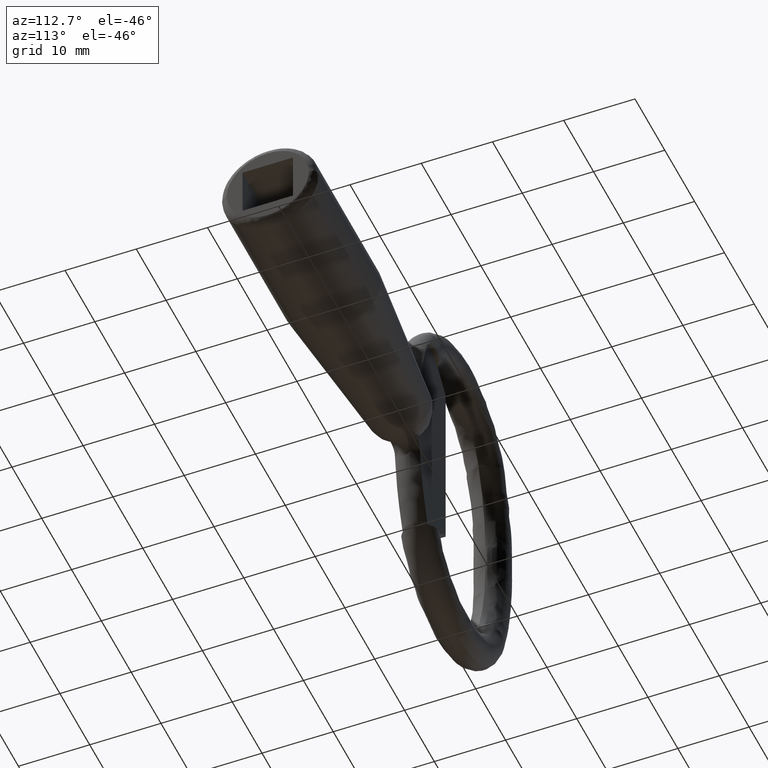
[diagram: clean part render]
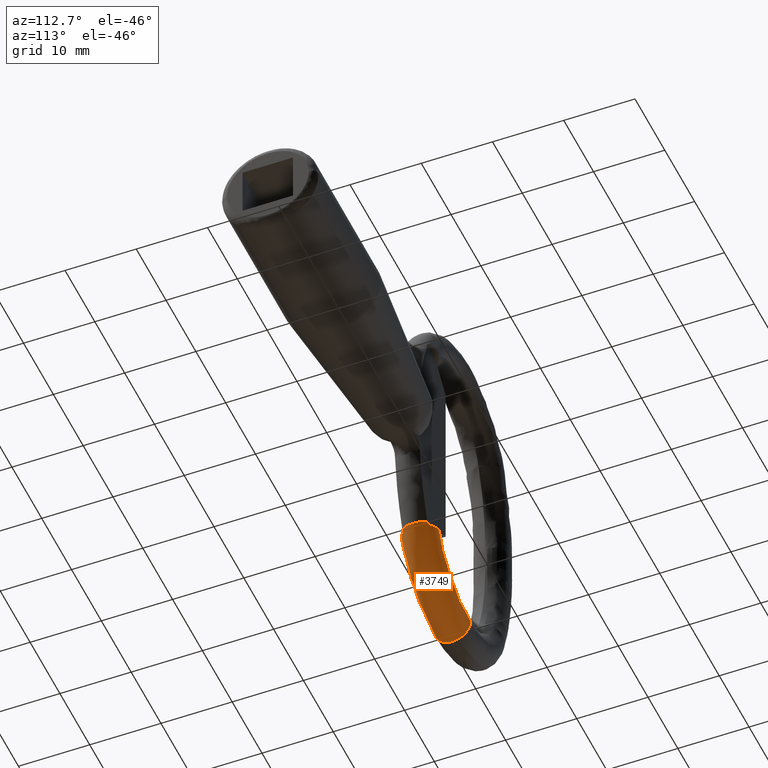
[diagram: same view with one face highlighted and labeled with its STEP entity id]
A machine part, auxiliary view. The second image highlights one B-rep face of the part: STEP entity #3749.
In plain terms, the highlighted face is a freeform B-spline surface patch.
Its self-contained STEP definition (entity closure, byte-faithful):
#1497=CARTESIAN_POINT('',(-62.221443634784507,0.000142196218092,-21.000079713873198));
#1498=VERTEX_POINT('',#1497);
#1518=CARTESIAN_POINT('',(-62.221443634784507,0.919495983686714,-25.822106288389168));
#1519=VERTEX_POINT('',#1518);
#1520=CARTESIAN_POINT('',(-62.221443634784507,0.919495983686714,-25.822106288389168));
#1521=CARTESIAN_POINT('',(-62.221443634784507,1.235811903918965,-25.696722721885170));
#1522=CARTESIAN_POINT('',(-62.221443634784507,1.527204242231194,-25.508359127479149));
#1523=CARTESIAN_POINT('',(-62.221443634784507,2.230638332380395,-24.804925037329951));
#1524=CARTESIAN_POINT('',(-62.221443634784507,2.500062482344925,-24.154477600454701));
#1525=CARTESIAN_POINT('',(-62.221443634784507,2.500062482344925,-22.845522399545349));
#1526=CARTESIAN_POINT('',(-62.221443634784507,2.230638332380395,-22.195074962670152));
#1527=CARTESIAN_POINT('',(-62.221443634784507,1.305067233547986,-21.269503863837748));
#1528=CARTESIAN_POINT('',(-62.221443634784507,0.654619796672772,-21.000079713873198));
#1529=CARTESIAN_POINT('',(-62.221443634784507,0.000142196218092,-21.000079713873198));
#1530=B_SPLINE_CURVE_WITH_KNOTS('',3,(#1520,#1521,#1522,#1523,#1524,#1525,#1526,#1527,#1528,#1529),.UNSPECIFIED.,.F.,.U.,(4,2,2,2,4),(0.559999985134429,0.625000000000000,0.750000000000000,0.875000000000000,1.0),.UNSPECIFIED.);
#1531=EDGE_CURVE('',#1519,#1498,#1530,.T.);
#1749=CARTESIAN_POINT('',(-62.221443634784507,0.000142196218093,-25.999920286126901));
#1750=VERTEX_POINT('',#1749);
#1751=CARTESIAN_POINT('',(-62.221443634784507,0.000142196218093,-25.999920286126901));
#1752=CARTESIAN_POINT('',(-62.221443634784507,0.314291366602873,-25.999920286126901));
#1753=CARTESIAN_POINT('',(-62.221443634784507,0.627511987759059,-25.937844992734568));
#1754=CARTESIAN_POINT('',(-62.221443634784507,0.919495983686714,-25.822106288389168));
#1755=B_SPLINE_CURVE_WITH_KNOTS('',3,(#1751,#1752,#1753,#1754),.UNSPECIFIED.,.F.,.U.,(4,4),(0.500000000000000,0.559999985134429),.UNSPECIFIED.);
#1756=EDGE_CURVE('',#1750,#1519,#1755,.T.);
#1758=CARTESIAN_POINT('',(-62.221443634784507,-2.188649087722205,-22.296493226061731));
#1759=VERTEX_POINT('',#1758);
#1760=CARTESIAN_POINT('',(-62.221443634784507,-2.188649087722205,-22.296493226061731));
#1761=CARTESIAN_POINT('',(-62.221443634784507,-2.389421957804363,-22.663919425365759));
#1762=CARTESIAN_POINT('',(-62.221443634784507,-2.499778089908740,-23.081134335179730));
#1763=CARTESIAN_POINT('',(-62.221443634784507,-2.499778089908740,-24.154477600454701));
#1764=CARTESIAN_POINT('',(-62.221443634784507,-2.230353939944210,-24.804925037329951));
#1765=CARTESIAN_POINT('',(-62.221443634784507,-1.304782841111800,-25.730496136162351));
#1766=CARTESIAN_POINT('',(-62.221443634784507,-0.654335404236586,-25.999920286126901));
#1767=CARTESIAN_POINT('',(-62.221443634784507,0.000142196218093,-25.999920286126901));
#1768=B_SPLINE_CURVE_WITH_KNOTS('',3,(#1760,#1761,#1762,#1763,#1764,#1765,#1766,#1767),.UNSPECIFIED.,.F.,.U.,(4,2,2,4),(0.169999999898907,0.250000000000000,0.375000000000000,0.500000000000000),.UNSPECIFIED.);
#1769=EDGE_CURVE('',#1759,#1750,#1768,.T.);
#3296=CARTESIAN_POINT('',(-62.221443634784507,-2.188649088102768,-22.296493226758180));
#3297=CARTESIAN_POINT('',(-62.221443634784507,-2.389421958083269,-22.663919426420190));
#3298=CARTESIAN_POINT('',(-62.221443634784507,-2.499778089908740,-23.081134335709031));
#3299=CARTESIAN_POINT('',(-62.221443634784507,-2.499778089908740,-24.154477600454701));
#3300=CARTESIAN_POINT('',(-62.221443634784507,-2.230353939944210,-24.804925037329951));
#3301=CARTESIAN_POINT('',(-62.221443634784507,-1.304782841111800,-25.730496136162351));
#3302=CARTESIAN_POINT('',(-62.221443634784507,-0.654335404236586,-25.999920286126901));
#3303=CARTESIAN_POINT('',(-62.221443634784507,0.654619796672772,-25.999920286126901));
#3304=CARTESIAN_POINT('',(-62.221443634784507,1.305067233547988,-25.730496136162351));
#3305=CARTESIAN_POINT('',(-62.221443634784507,2.230638332380395,-24.804925037329951));
#3306=CARTESIAN_POINT('',(-62.221443634784507,2.500062482344925,-24.154477600454701));
#3307=CARTESIAN_POINT('',(-62.221443634784507,2.500062482344925,-22.845522399545349));
#3308=CARTESIAN_POINT('',(-62.221443634784507,2.230638332380395,-22.195074962670152));
#3309=CARTESIAN_POINT('',(-62.221443634784507,1.305067233547986,-21.269503863837748));
#3310=CARTESIAN_POINT('',(-62.221443634784507,0.654619796672772,-21.000079713873198));
#3311=CARTESIAN_POINT('',(-62.221443634784507,0.000142196218092,-21.000079713873198));
#3312=CARTESIAN_POINT('',(-60.090089663664628,-2.188649088102768,-22.296493226758180));
#3313=CARTESIAN_POINT('',(-60.015940314271937,-2.389421958083269,-22.663919426420190));
#3314=CARTESIAN_POINT('',(-59.931743231675682,-2.499778089908740,-23.081134335709031));
#3315=CARTESIAN_POINT('',(-59.715134549901897,-2.499778089908740,-24.154477600454701));
#3316=CARTESIAN_POINT('',(-59.583869402498600,-2.230353939944210,-24.804925037329951));
#3317=CARTESIAN_POINT('',(-59.397082246711399,-1.304782841111800,-25.730496136162351));
#3318=CARTESIAN_POINT('',(-59.342710442391287,-0.654335404236586,-25.999920286126901));
#3319=CARTESIAN_POINT('',(-59.342710442391287,0.654619796672772,-25.999920286126901));
#3320=CARTESIAN_POINT('',(-59.397082246711399,1.305067233547988,-25.730496136162351));
#3321=CARTESIAN_POINT('',(-59.583869402498600,2.230638332380395,-24.804925037329951));
#3322=CARTESIAN_POINT('',(-59.715134549901897,2.500062482344925,-24.154477600454701));
#3323=CARTESIAN_POINT('',(-59.979291478894297,2.500062482344925,-22.845522399545349));
#3324=CARTESIAN_POINT('',(-60.110556626297502,2.230638332380395,-22.195074962670152));
#3325=CARTESIAN_POINT('',(-60.297343782078599,1.305067233547986,-21.269503863837748));
#3326=CARTESIAN_POINT('',(-60.351715586404801,0.654619796672772,-21.000079713873198));
#3327=CARTESIAN_POINT('',(-60.351715586404801,0.000142196218092,-21.000079713873198));
#3328=CARTESIAN_POINT('',(-57.967265482017311,-2.188649088102768,-21.633551521451409));
#3329=CARTESIAN_POINT('',(-57.819263532783950,-2.389421958083269,-21.977914120792729));
#3330=CARTESIAN_POINT('',(-57.651206328696730,-2.499778089908740,-22.368940157528151));
#3331=CARTESIAN_POINT('',(-57.218855844375597,-2.499778089908740,-23.374908912535201));
#3332=CARTESIAN_POINT('',(-56.956850879514803,-2.230353939944210,-23.984527307494499));
#3333=CARTESIAN_POINT('',(-56.584024099864202,-1.304782841111800,-24.851999659117102));
#3334=CARTESIAN_POINT('',(-56.475498090008202,-0.654335404236586,-25.104511866157701));
#3335=CARTESIAN_POINT('',(-56.475498090008202,0.654619796672772,-25.104511866157701));
#3336=CARTESIAN_POINT('',(-56.584024099864202,1.305067233547988,-24.851999659117102));
#3337=CARTESIAN_POINT('',(-56.956850879514803,2.230638332380395,-23.984527307494499));
#3338=CARTESIAN_POINT('',(-57.218855844375597,2.500062482344925,-23.374908912535201));
#3339=CARTESIAN_POINT('',(-57.746112532572099,2.500062482344925,-22.148117747892449));
#3340=CARTESIAN_POINT('',(-58.008117497432913,2.230638332380395,-21.538499352949650));
#3341=CARTESIAN_POINT('',(-58.380944277091700,1.305067233547986,-20.671027001327001));
#3342=CARTESIAN_POINT('',(-58.489470286939600,0.654619796672772,-20.418514794278199));
#3343=CARTESIAN_POINT('',(-58.489470286939600,0.000142196218092,-20.418514794278199));
#3344=CARTESIAN_POINT('',(-55.339854959998682,-2.188649088102768,-19.817180788853481));
#3345=CARTESIAN_POINT('',(-55.100445959926191,-2.389421958083269,-20.098352238387040));
#3346=CARTESIAN_POINT('',(-54.828595437725419,-2.499778089908740,-20.417624301510720));
#3347=CARTESIAN_POINT('',(-54.129222235746397,-2.499778089908740,-21.238995999757599));
#3348=CARTESIAN_POINT('',(-53.705401151117002,-2.230353939944210,-21.736748334339250));
#3349=CARTESIAN_POINT('',(-53.102313914898502,-1.304782841111800,-22.445037965684900));
#3350=CARTESIAN_POINT('',(-52.926761473626200,-0.654335404236586,-22.651213733383351));
#3351=CARTESIAN_POINT('',(-52.926761473626200,0.654619796672772,-22.651213733383351));
#3352=CARTESIAN_POINT('',(-53.102313914898502,1.305067233547988,-22.445037965684900));
#3353=CARTESIAN_POINT('',(-53.705401151117002,2.230638332380395,-21.736748334339250));
#3354=CARTESIAN_POINT('',(-54.129222235746397,2.500062482344925,-21.238995999757599));
#3355=CARTESIAN_POINT('',(-54.982116384501303,2.500062482344925,-20.237323197017499));
#3356=CARTESIAN_POINT('',(-55.405937469130699,2.230638332380395,-19.739570862427598));
#3357=CARTESIAN_POINT('',(-56.009024705345098,1.305067233547986,-19.031281231081952));
#3358=CARTESIAN_POINT('',(-56.184577146621500,0.654619796672772,-18.825105463387651));
#3359=CARTESIAN_POINT('',(-56.184577146621500,0.000142196218092,-18.825105463387651));
#3360=CARTESIAN_POINT('',(-54.556961764197297,-2.188649088102768,-19.078937082112070));
#3361=CARTESIAN_POINT('',(-54.290316077070159,-2.389421958083269,-19.334425190779299));
#3362=CARTESIAN_POINT('',(-53.987538114394802,-2.499778089908740,-19.624533648423188));
#3363=CARTESIAN_POINT('',(-53.208599778978801,-2.499778089908740,-20.370877923580750));
#3364=CARTESIAN_POINT('',(-52.736562118340601,-2.230353939944210,-20.823163540630748));
#3365=CARTESIAN_POINT('',(-52.064863851151912,-1.304782841111800,-21.466755123632250));
#3366=CARTESIAN_POINT('',(-51.869339450162798,-0.654335404236586,-21.654097960282250));
#3367=CARTESIAN_POINT('',(-51.869339450162798,0.654619796672772,-21.654097960282250));
#3368=CARTESIAN_POINT('',(-52.064863851151912,1.305067233547988,-21.466755123632250));
#3369=CARTESIAN_POINT('',(-52.736562118340601,2.230638332380395,-20.823163540630748));
#3370=CARTESIAN_POINT('',(-53.208599778978801,2.500062482344925,-20.370877923580750));
#3371=CARTESIAN_POINT('',(-54.158524578266601,2.500062482344925,-19.460701978266648));
#3372=CARTESIAN_POINT('',(-54.630562238904808,2.230638332380395,-19.008416361216600));
#3373=CARTESIAN_POINT('',(-55.302260506093397,1.305067233547986,-18.364824778211052));
#3374=CARTESIAN_POINT('',(-55.497784907082597,0.654619796672772,-18.177481941560998));
#3375=CARTESIAN_POINT('',(-55.497784907082597,0.000142196218092,-18.177481941560998));
#3376=CARTESIAN_POINT('',(-53.573275284265499,-2.188649088102768,-17.820738918640799));
#3377=CARTESIAN_POINT('',(-53.272407354619439,-2.389421958083269,-18.032454581954632));
#3378=CARTESIAN_POINT('',(-52.930769806478970,-2.499778089908740,-18.272859134884719));
#3379=CARTESIAN_POINT('',(-52.051859793638712,-2.499778089908740,-18.891333216123549));
#3380=CARTESIAN_POINT('',(-51.519239164363299,-2.230353939944210,-19.266129326677451));
#3381=CARTESIAN_POINT('',(-50.761332786150902,-1.304782841111800,-19.799455200864401));
#3382=CARTESIAN_POINT('',(-50.540714097906303,-0.654335404236586,-19.954700832979700));
#3383=CARTESIAN_POINT('',(-50.540714097906303,0.654619796672772,-19.954700832979700));
#3384=CARTESIAN_POINT('',(-50.761332786150902,1.305067233547988,-19.799455200864401));
#3385=CARTESIAN_POINT('',(-51.519239164363299,2.230638332380395,-19.266129326677451));
#3386=CARTESIAN_POINT('',(-52.051859793638712,2.500062482344925,-18.891333216123549));
#3387=CARTESIAN_POINT('',(-53.123701272712204,2.500062482344925,-18.137096531685948));
#3388=CARTESIAN_POINT('',(-53.656321901987603,2.230638332380395,-17.762300421132050));
#3389=CARTESIAN_POINT('',(-54.414228280200000,1.305067233547986,-17.228974546947150));
#3390=CARTESIAN_POINT('',(-54.634846968444599,0.654619796672772,-17.073728914831850));
#3391=CARTESIAN_POINT('',(-54.634846968444599,0.000142196218092,-17.073728914831850));
#3392=CARTESIAN_POINT('',(-53.277129051268261,-2.188649088102768,-17.376469645097540));
#3393=CARTESIAN_POINT('',(-52.965958257434423,-2.389421958083269,-17.572729275281350));
#3394=CARTESIAN_POINT('',(-52.612621738040701,-2.499778089908740,-17.795583399128240));
#3395=CARTESIAN_POINT('',(-51.703614497794000,-2.499778089908740,-18.368906565504350));
#3396=CARTESIAN_POINT('',(-51.152754908943400,-2.230353939944210,-18.716341161985451));
#3397=CARTESIAN_POINT('',(-50.368894928794901,-1.304782841111800,-19.210732258028500));
#3398=CARTESIAN_POINT('',(-50.140721416125693,-0.654335404236586,-19.354644379926398));
#3399=CARTESIAN_POINT('',(-50.140721416125693,0.654619796672772,-19.354644379926398));
#3400=CARTESIAN_POINT('',(-50.368894928794901,1.305067233547988,-19.210732258028500));
#3401=CARTESIAN_POINT('',(-51.152754908943400,2.230638332380395,-18.716341161985451));
#3402=CARTESIAN_POINT('',(-51.703614497794000,2.500062482344925,-18.368906565504350));
#3403=CARTESIAN_POINT('',(-52.812159912729001,2.500062482344925,-17.669731972362751));
#3404=CARTESIAN_POINT('',(-53.363019501579593,2.230638332380395,-17.322297375885750));
#3405=CARTESIAN_POINT('',(-54.146879481732199,1.305067233547986,-16.827906279840700));
#3406=CARTESIAN_POINT('',(-54.375052994401500,0.654619796672772,-16.683994157940699));
#3407=CARTESIAN_POINT('',(-54.375052994401500,0.000142196218092,-16.683994157940699));
#3408=CARTESIAN_POINT('',(-52.885634722396347,-2.188649088102768,-16.680379259025919));
#3409=CARTESIAN_POINT('',(-52.560843924483990,-2.389421958083269,-16.852422053365459));
#3410=CARTESIAN_POINT('',(-52.192041799285647,-2.499778089908740,-17.047777798002780));
#3411=CARTESIAN_POINT('',(-51.243247141446098,-2.499778089908740,-17.550357567006699));
#3412=CARTESIAN_POINT('',(-50.668276324946000,-2.230353939944210,-17.854921571188900));
#3413=CARTESIAN_POINT('',(-49.850106646270213,-1.304782841111800,-18.288308842835399));
#3414=CARTESIAN_POINT('',(-49.611945936109201,-0.654335404236586,-18.414463383979399));
#3415=CARTESIAN_POINT('',(-49.611945936109201,0.654619796672772,-18.414463383979399));
#3416=CARTESIAN_POINT('',(-49.850106646270213,1.305067233547988,-18.288308842835399));
#3417=CARTESIAN_POINT('',(-50.668276324946000,2.230638332380395,-17.854921571188900));
#3418=CARTESIAN_POINT('',(-51.243247141446098,2.500062482344925,-17.550357567006699));
#3419=CARTESIAN_POINT('',(-52.400313797347998,2.500062482344925,-16.937455409684851));
#3420=CARTESIAN_POINT('',(-52.975284613848103,2.230638332380395,-16.632891405500651));
#3421=CARTESIAN_POINT('',(-53.793454292521801,1.305067233547986,-16.199504133855150));
#3422=CARTESIAN_POINT('',(-54.031615002682798,0.654619796672772,-16.073349592712201));
#3423=CARTESIAN_POINT('',(-54.031615002682798,0.000142196218092,-16.073349592712201));
#3424=CARTESIAN_POINT('',(-52.763909327705072,-2.188649088102768,-16.443407094588359));
#3425=CARTESIAN_POINT('',(-52.434883729312901,-2.389421958083269,-16.607205677944830));
#3426=CARTESIAN_POINT('',(-52.061272959821807,-2.499778089908740,-16.793200065823541));
#3427=CARTESIAN_POINT('',(-51.100107397081807,-2.499778089908740,-17.271696445183149));
#3428=CARTESIAN_POINT('',(-50.517639795867403,-2.230353939944210,-17.561665883416548));
#3429=CARTESIAN_POINT('',(-49.688802372382803,-1.304782841111800,-17.974285437828900));
#3430=CARTESIAN_POINT('',(-49.447536392318803,-0.654335404236586,-18.094394711817849));
#3431=CARTESIAN_POINT('',(-49.447536392318803,0.654619796672772,-18.094394711817849));
#3432=CARTESIAN_POINT('',(-49.688802372382803,1.305067233547988,-17.974285437828900));
#3433=CARTESIAN_POINT('',(-50.517639795867403,2.230638332380395,-17.561665883416548));
#3434=CARTESIAN_POINT('',(-51.100107397081807,2.500062482344925,-17.271696445183149));
#3435=CARTESIAN_POINT('',(-52.272260522374502,2.500062482344925,-16.688164275232399));
#3436=CARTESIAN_POINT('',(-52.854728123588792,2.230638332380395,-16.398194836999050));
#3437=CARTESIAN_POINT('',(-53.683565547071403,1.305067233547986,-15.985575282586201));
#3438=CARTESIAN_POINT('',(-53.924831527139503,0.654619796672772,-15.865466008596149));
#3439=CARTESIAN_POINT('',(-53.924831527139503,0.000142196218092,-15.865466008596149));
#3440=CARTESIAN_POINT('',(-52.594982899972777,-2.188649088102768,-16.081494134274308));
#3441=CARTESIAN_POINT('',(-52.260080387242411,-2.389421958083269,-16.232701843046659));
#3442=CARTESIAN_POINT('',(-51.879796342179951,-2.499778089908740,-16.404399208550931));
#3443=CARTESIAN_POINT('',(-50.901462851764798,-2.499778089908740,-16.846114513387501));
#3444=CARTESIAN_POINT('',(-50.308591463690199,-2.230353939944210,-17.113794571851251));
#3445=CARTESIAN_POINT('',(-49.464949701087797,-1.304782841111800,-17.494696873563399));
#3446=CARTESIAN_POINT('',(-49.219374331403401,-0.654335404236586,-17.605573584156399));
#3447=CARTESIAN_POINT('',(-49.219374331403401,0.654619796672772,-17.605573584156399));
#3448=CARTESIAN_POINT('',(-49.464949701087797,1.305067233547988,-17.494696873563399));
#3449=CARTESIAN_POINT('',(-50.308591463690199,2.230638332380395,-17.113794571851251));
#3450=CARTESIAN_POINT('',(-50.901462851764798,2.500062482344925,-16.846114513387501));
#3451=CARTESIAN_POINT('',(-52.094552474222297,2.500062482344925,-16.307437312367298));
#3452=CARTESIAN_POINT('',(-52.687423862296903,2.230638332380395,-16.039757253903549));
#3453=CARTESIAN_POINT('',(-53.531065624900293,1.305067233547986,-15.658854952191650));
#3454=CARTESIAN_POINT('',(-53.776640994582699,0.654619796672772,-15.547978241599150));
#3455=CARTESIAN_POINT('',(-53.776640994582699,0.000142196218092,-15.547978241599150));
#3456=CARTESIAN_POINT('',(-52.540950093329940,-2.188649088102768,-15.959780487845951));
#3457=CARTESIAN_POINT('',(-52.204167790798337,-2.389421958083269,-16.106753804857519));
#3458=CARTESIAN_POINT('',(-51.821749231833287,-2.499778089908740,-16.273642990172220));
#3459=CARTESIAN_POINT('',(-50.837924408124799,-2.499778089908740,-16.702988584081051));
#3460=CARTESIAN_POINT('',(-50.241725264818697,-2.230353939944210,-16.963172581376650));
#3461=CARTESIAN_POINT('',(-49.393348186351602,-1.304782841111800,-17.333408167871301));
#3462=CARTESIAN_POINT('',(-49.146394415319101,-0.654335404236586,-17.441179908263901));
#3463=CARTESIAN_POINT('',(-49.146394415319101,0.654619796672772,-17.441179908263901));
#3464=CARTESIAN_POINT('',(-49.393348186351602,1.305067233547988,-17.333408167871301));
#3465=CARTESIAN_POINT('',(-50.241725264818697,2.230638332380395,-16.963172581376650));
#3466=CARTESIAN_POINT('',(-50.837924408124799,2.500062482344925,-16.702988584081051));
#3467=CARTESIAN_POINT('',(-52.037710778501001,2.500062482344925,-16.179396396387350));
#3468=CARTESIAN_POINT('',(-52.633909921806001,2.230638332380395,-15.919212399091499));
#3469=CARTESIAN_POINT('',(-53.482287000274198,1.305067233547986,-15.548976812596850));
#3470=CARTESIAN_POINT('',(-53.729240771306600,0.654619796672772,-15.441205072204751));
#3471=CARTESIAN_POINT('',(-53.729240771306600,0.000142196218092,-15.441205072204751));
#3472=CARTESIAN_POINT('',(-52.437509690555189,-2.188649088102768,-15.714356580764751));
#3473=CARTESIAN_POINT('',(-52.097128718505793,-2.389421958083269,-15.852791652471939));
#3474=CARTESIAN_POINT('',(-51.710623846213302,-2.499778089908740,-16.009985603087959));
#3475=CARTESIAN_POINT('',(-50.716286414281797,-2.499778089908740,-16.414388860009499));
#3476=CARTESIAN_POINT('',(-50.113716616498799,-2.230353939944210,-16.659457768128899));
#3477=CARTESIAN_POINT('',(-49.256274249538698,-1.304782841111800,-17.008184945327748));
#3478=CARTESIAN_POINT('',(-49.006681667020402,-0.654335404236586,-17.109695810786398));
#3479=CARTESIAN_POINT('',(-49.006681667020402,0.654619796672772,-17.109695810786398));
#3480=CARTESIAN_POINT('',(-49.256274249538698,1.305067233547988,-17.008184945327748));
#3481=CARTESIAN_POINT('',(-50.113716616498799,2.230638332380395,-16.659457768128899));
#3482=CARTESIAN_POINT('',(-50.716286414281797,2.500062482344925,-16.414388860009499));
#3483=CARTESIAN_POINT('',(-51.928893038588498,2.500062482344925,-15.921214156446650));
#3484=CARTESIAN_POINT('',(-52.531462836372597,2.230638332380395,-15.676145248327551));
#3485=CARTESIAN_POINT('',(-53.388905203331603,1.305067233547986,-15.327418071128699));
#3486=CARTESIAN_POINT('',(-53.638497785849900,0.654619796672772,-15.225907205669500));
#3487=CARTESIAN_POINT('',(-53.638497785849900,0.000142196218092,-15.225907205669500));
#3488=CARTESIAN_POINT('',(-52.390786126743812,-2.188649088102768,-15.597746556623070));
#3489=CARTESIAN_POINT('',(-52.047867735617487,-2.389421958083269,-15.729709760345710));
#3490=CARTESIAN_POINT('',(-51.658481606977659,-2.499778089908740,-15.879554861542291));
#3491=CARTESIAN_POINT('',(-50.656731743164897,-2.499778089908740,-16.265052183291001));
#3492=CARTESIAN_POINT('',(-50.049670001867298,-2.230353939944210,-16.498664069711001));
#3493=CARTESIAN_POINT('',(-49.185835707044198,-1.304782841111800,-16.831088179878900));
#3494=CARTESIAN_POINT('',(-48.934382500600798,-0.654335404236586,-16.927853391565499));
#3495=CARTESIAN_POINT('',(-48.934382500600798,0.654619796672772,-16.927853391565499));
#3496=CARTESIAN_POINT('',(-49.185835707044198,1.305067233547988,-16.831088179878900));
#3497=CARTESIAN_POINT('',(-50.049670001867298,2.230638332380395,-16.498664069711001));
#3498=CARTESIAN_POINT('',(-50.656731743164897,2.500062482344925,-16.265052183291001));
#3499=CARTESIAN_POINT('',(-51.878377918546313,2.500062482344925,-15.794933498231600));
#3500=CARTESIAN_POINT('',(-52.485439659844900,2.230638332380395,-15.561321611811350));
#3501=CARTESIAN_POINT('',(-53.349273954668000,1.305067233547986,-15.228897501643750));
#3502=CARTESIAN_POINT('',(-53.600727161111401,0.654619796672772,-15.132132289956850));
#3503=CARTESIAN_POINT('',(-53.600727161111401,0.000142196218092,-15.132132289956850));
#3504=CARTESIAN_POINT('',(-52.330411387673408,-2.188649088102768,-15.437865709785020));
#3505=CARTESIAN_POINT('',(-51.986499338201952,-2.389421958083269,-15.567197743989849));
#3506=CARTESIAN_POINT('',(-51.595984903859602,-2.499778089908740,-15.714055134585680));
#3507=CARTESIAN_POINT('',(-50.591332317014597,-2.499778089908740,-16.091866156111340));
#3508=CARTESIAN_POINT('',(-49.982511521722813,-2.230353939944210,-16.320820134438950));
#3509=CARTESIAN_POINT('',(-49.116174135265808,-1.304782841111800,-16.646616153131401));
#3510=CARTESIAN_POINT('',(-48.863992304801222,-0.654335404236586,-16.741451996113991));
#3511=CARTESIAN_POINT('',(-48.863992304801222,0.654619796672772,-16.741451996113991));
#3512=CARTESIAN_POINT('',(-49.116174135265808,1.305067233547988,-16.646616153131401));
#3513=CARTESIAN_POINT('',(-49.982511521722813,2.230638332380395,-16.320820134438950));
#3514=CARTESIAN_POINT('',(-50.591332317014597,2.500062482344925,-16.091866156111340));
#3515=CARTESIAN_POINT('',(-51.816518398532892,2.500062482344925,-15.631121007909311));
#3516=CARTESIAN_POINT('',(-52.425339193824520,2.230638332380395,-15.402167029581790));
#3517=CARTESIAN_POINT('',(-53.291676580281433,1.305067233547986,-15.076371010889259));
#3518=CARTESIAN_POINT('',(-53.543858410746033,0.654619796672772,-14.981535167906721));
#3519=CARTESIAN_POINT('',(-53.543858410746033,0.000142196218092,-14.981535167906721));
#3520=CARTESIAN_POINT('',(-52.319033053135563,-2.188649088102768,-15.407732521282901));
#3521=CARTESIAN_POINT('',(-51.975174967532197,-2.389421958083268,-15.537207471037091));
#3522=CARTESIAN_POINT('',(-51.584721809523302,-2.499778089908740,-15.684227143195910));
#3523=CARTESIAN_POINT('',(-50.580226864551413,-2.499778089908740,-16.062455656567519));
#3524=CARTESIAN_POINT('',(-49.971501600443048,-2.230353939944210,-16.291662635505489));
#3525=CARTESIAN_POINT('',(-49.105300152568383,-1.304782841111800,-16.617818667997138));
#3526=CARTESIAN_POINT('',(-48.853157892415567,-0.654335404236586,-16.712759307263820));
#3527=CARTESIAN_POINT('',(-48.853157892415567,0.654619796672772,-16.712759307263820));
#3528=CARTESIAN_POINT('',(-49.105300152568383,1.305067233547988,-16.617818667997138));
#3529=CARTESIAN_POINT('',(-49.971501600443048,2.230638332380395,-16.291662635505489));
#3530=CARTESIAN_POINT('',(-50.580226864551413,2.500062482344925,-16.062455656567519));
#3531=CARTESIAN_POINT('',(-51.805220699882973,2.500062482344925,-15.601201371967990));
#3532=CARTESIAN_POINT('',(-52.413945963991146,2.230638332380395,-15.371994393030130));
#3533=CARTESIAN_POINT('',(-53.280147411865762,1.305067233547986,-15.045838360538401));
#3534=CARTESIAN_POINT('',(-53.532289672018557,0.654619796672772,-14.950897721271771));
#3535=CARTESIAN_POINT('',(-53.532289672018557,0.000142196218092,-14.950897721271771));
#3536=CARTESIAN_POINT('',(-52.307586081708450,-2.188649088102768,-15.377417094792190));
#3537=CARTESIAN_POINT('',(-51.963802966900367,-2.389421958083268,-15.507090576555891));
#3538=CARTESIAN_POINT('',(-51.573434938731353,-2.499778089908740,-15.654335683140500));
#3539=CARTESIAN_POINT('',(-50.569159002088902,-2.499778089908740,-16.033144157863390));
#3540=CARTESIAN_POINT('',(-49.960566457317597,-2.230353939944210,-16.262702594146649));
#3541=CARTESIAN_POINT('',(-49.094553865875682,-1.304782841111800,-16.589358742009420));
#3542=CARTESIAN_POINT('',(-48.842466579872273,-0.654335404236586,-16.684444959675101));
#3543=CARTESIAN_POINT('',(-48.842466579872273,0.654619796672772,-16.684444959675101));
#3544=CARTESIAN_POINT('',(-49.094553865875682,1.305067233547988,-16.589358742009420));
#3545=CARTESIAN_POINT('',(-49.960566457317597,2.230638332380395,-16.262702594146649));
#3546=CARTESIAN_POINT('',(-50.569159002088902,2.500062482344925,-16.033144157863390));
#3547=CARTESIAN_POINT('',(-51.793885754091903,2.500062482344925,-15.571182603323271));
#3548=CARTESIAN_POINT('',(-52.402478298863052,2.230638332380395,-15.341624167040109));
#3549=CARTESIAN_POINT('',(-53.268490890304918,1.305067233547986,-15.014968019177291));
#3550=CARTESIAN_POINT('',(-53.520578176308327,0.654619796672772,-14.919881801511639));
#3551=CARTESIAN_POINT('',(-53.520578176308327,0.000142196218092,-14.919881801511639));
#3552=B_SPLINE_SURFACE_WITH_KNOTS('',3,3,((#3296,#3312,#3328,#3344,#3360,#3376,#3392,#3408,#3424,#3440,#3456,#3472,#3488,#3504,#3520,#3536),(#3297,#3313,#3329,#3345,#3361,#3377,#3393,#3409,#3425,#3441,#3457,#3473,#3489,#3505,#3521,#3537),(#3298,#3314,#3330,#3346,#3362,#3378,#3394,#3410,#3426,#3442,#3458,#3474,#3490,#3506,#3522,#3538),(#3299,#3315,#3331,#3347,#3363,#3379,#3395,#3411,#3427,#3443,#3459,#3475,#3491,#3507,#3523,#3539),(#3300,#3316,#3332,#3348,#3364,#3380,#3396,#3412,#3428,#3444,#3460,#3476,#3492,#3508,#3524,#3540),(#3301,#3317,#3333,#3349,#3365,#3381,#3397,#3413,#3429,#3445,#3461,#3477,#3493,#3509,#3525,#3541),(#3302,#3318,#3334,#3350,#3366,#3382,#3398,#3414,#3430,#3446,#3462,#3478,#3494,#3510,#3526,#3542),(#3303,#3319,#3335,#3351,#3367,#3383,#3399,#3415,#3431,#3447,#3463,#3479,#3495,#3511,#3527,#3543),(#3304,#3320,#3336,#3352,#3368,#3384,#3400,#3416,#3432,#3448,#3464,#3480,#3496,#3512,#3528,#3544),(#3305,#3321,#3337,#3353,#3369,#3385,#3401,#3417,#3433,#3449,#3465,#3481,#3497,#3513,#3529,#3545),(#3306,#3322,#3338,#3354,#3370,#3386,#3402,#3418,#3434,#3450,#3466,#3482,#3498,#3514,#3530,#3546),(#3307,#3323,#3339,#3355,#3371,#3387,#3403,#3419,#3435,#3451,#3467,#3483,#3499,#3515,#3531,#3547),(#3308,#3324,#3340,#3356,#3372,#3388,#3404,#3420,#3436,#3452,#3468,#3484,#3500,#3516,#3532,#3548),(#3309,#3325,#3341,#3357,#3373,#3389,#3405,#3421,#3437,#3453,#3469,#3485,#3501,#3517,#3533,#3549),(#3310,#3326,#3342,#3358,#3374,#3390,#3406,#3422,#3438,#3454,#3470,#3486,#3502,#3518,#3534,#3550),(#3311,#3327,#3343,#3359,#3375,#3391,#3407,#3423,#3439,#3455,#3471,#3487,#3503,#3519,#3535,#3551)),.UNSPECIFIED.,.F.,.F.,.U.,(4,2,2,2,2,2,2,4),(4,2,2,2,2,2,2,4),(0.0,1.256596992872985,3.220029794237024,5.183462595601061,7.146895396965101,9.110328198329139,11.073760999693180,13.037193801057221),(0.0,8.825172754457885,13.237759131686810,15.444052320301269,16.547198914608479,17.098772211762100,17.650345508915731,17.768200482989311),.UNSPECIFIED.);
#3553=CARTESIAN_POINT('',(-49.695713847774400,-1.750000083120950,-16.902932109831902));
#3554=VERTEX_POINT('',#3553);
#3555=CARTESIAN_POINT('',(-52.491233573947270,-2.188649039020642,-15.841819321912689));
#3556=VERTEX_POINT('',#3555);
#3557=CARTESIAN_POINT('',(-49.695713847774400,-1.750000083120950,-16.902932109831902));
#3558=CARTESIAN_POINT('',(-49.814100384642089,-1.868594019894284,-16.885337787491359));
#3559=CARTESIAN_POINT('',(-49.941757022802797,-1.973089579873410,-16.863265477695279));
#3560=CARTESIAN_POINT('',(-50.145223011970899,-2.110790626353637,-16.821402090175539));
#3561=CARTESIAN_POINT('',(-50.215066036262201,-2.153482608454127,-16.805984512586459));
#3562=CARTESIAN_POINT('',(-50.358746976349892,-2.232398183022572,-16.771799955965811));
#3563=CARTESIAN_POINT('',(-50.432745983352092,-2.268640177259603,-16.752973569099190));
#3564=CARTESIAN_POINT('',(-50.655743931685002,-2.365214186308719,-16.692206885036690));
#3565=CARTESIAN_POINT('',(-50.807258551922097,-2.414491310379274,-16.645659700992450));
#3566=CARTESIAN_POINT('',(-51.000016466095090,-2.456675905462162,-16.578772645612361));
#3567=CARTESIAN_POINT('',(-51.038739528203358,-2.464129964479034,-16.564958150855770));
#3568=CARTESIAN_POINT('',(-51.116537009716758,-2.477007437254191,-16.536416788935512));
#3569=CARTESIAN_POINT('',(-51.155730191859249,-2.482440505656093,-16.521642574347979));
#3570=CARTESIAN_POINT('',(-51.272544196623862,-2.495435587055552,-16.476403328833470));
#3571=CARTESIAN_POINT('',(-51.349624631727572,-2.499767806560498,-16.444949831661571));
#3572=CARTESIAN_POINT('',(-51.578512858276163,-2.499798601911217,-16.346779370174289));
#3573=CARTESIAN_POINT('',(-51.727976388317629,-2.482684775626982,-16.276255012696570));
#3574=CARTESIAN_POINT('',(-51.910985615951347,-2.440340010867847,-16.181903277771418));
#3575=CARTESIAN_POINT('',(-51.947303207466042,-2.430826303790232,-16.162768324579670));
#3576=CARTESIAN_POINT('',(-52.018747961571250,-2.409926389322164,-16.124333440046328));
#3577=CARTESIAN_POINT('',(-52.053970805814188,-2.398518868701636,-16.104984486607108));
#3578=CARTESIAN_POINT('',(-52.158193223679142,-2.361493843451538,-16.046579681393940));
#3579=CARTESIAN_POINT('',(-52.293307169333467,-2.304671913907499,-15.967750539767520));
#3580=CARTESIAN_POINT('',(-52.421102219828633,-2.233226295249704,-15.887439775273929));
#3581=CARTESIAN_POINT('',(-52.485889514164299,-2.192071070645527,-15.845302879645050));
#3582=CARTESIAN_POINT('',(-52.488563162492753,-2.190363550332293,-15.843561347041589));
#3583=CARTESIAN_POINT('',(-52.491233573947270,-2.188649039020642,-15.841819321912689));
#3584=B_SPLINE_CURVE_WITH_KNOTS('',3,(#3557,#3558,#3559,#3560,#3561,#3562,#3563,#3564,#3565,#3566,#3567,#3568,#3569,#3570,#3571,#3572,#3573,#3574,#3575,#3576,#3577,#3578,#3579,#3580,#3581,#3582,#3583),.UNSPECIFIED.,.F.,.U.,(4,2,2,2,2,2,2,2,2,2,2,1,2,4),(0.0,0.125000000000001,0.187500000000004,0.250000000000006,0.375000000000011,0.406250000000011,0.437500000000011,0.500000000000010,0.625000000000015,0.656250000000015,0.687500000000014,0.750000000000013,0.812500000000011,0.815193499927221),.UNSPECIFIED.);
#3585=EDGE_CURVE('',#3554,#3556,#3584,.T.);
#3586=ORIENTED_EDGE('',*,*,#3585,.T.);
#3587=CARTESIAN_POINT('',(-62.221443634784507,-2.188649087722205,-22.296493226061731));
#3588=CARTESIAN_POINT('',(-60.090089663664628,-2.188649088102768,-22.296493226758180));
#3589=CARTESIAN_POINT('',(-57.967265482017311,-2.188649088102768,-21.633551521451409));
#3590=CARTESIAN_POINT('',(-55.339854959998668,-2.188649088102768,-19.817180788853481));
#3591=CARTESIAN_POINT('',(-54.556961764197297,-2.188649088102768,-19.078937082112070));
#3592=CARTESIAN_POINT('',(-53.573275284265499,-2.188649088102768,-17.820738918640799));
#3593=CARTESIAN_POINT('',(-53.277129051268268,-2.188649088102768,-17.376469645097540));
#3594=CARTESIAN_POINT('',(-52.885634722396347,-2.188649088102768,-16.680379259025919));
#3595=CARTESIAN_POINT('',(-52.763909327705072,-2.188649088102768,-16.443407094588359));
#3596=CARTESIAN_POINT('',(-52.595709639024577,-2.188649088102768,-16.083051121449991));
#3597=CARTESIAN_POINT('',(-52.542345200955197,-2.188649088102768,-15.962922057168210));
#3598=CARTESIAN_POINT('',(-52.491233573947270,-2.188649039020642,-15.841819321912689));
#3599=B_SPLINE_CURVE_WITH_KNOTS('',3,(#3587,#3588,#3589,#3590,#3591,#3592,#3593,#3594,#3595,#3596,#3597,#3598),.UNSPECIFIED.,.F.,.U.,(4,2,2,2,2,4),(0.504823025087207,0.752411512543604,0.876205756271802,0.938102878135901,0.969051439067950,0.984326003644683),.UNSPECIFIED.);
#3600=EDGE_CURVE('',#1759,#3556,#3599,.T.);
#3601=ORIENTED_EDGE('',*,*,#3600,.F.);
#3602=ORIENTED_EDGE('',*,*,#1769,.T.);
#3603=ORIENTED_EDGE('',*,*,#1756,.T.);
#3604=ORIENTED_EDGE('',*,*,#1531,.T.);
#3605=CARTESIAN_POINT('',(-53.557440106915422,0.000142196221406,-15.017489336671730));
#3606=VERTEX_POINT('',#3605);
#3607=CARTESIAN_POINT('',(-62.221443634784507,0.000142196218092,-21.000079713873198));
#3608=CARTESIAN_POINT('',(-60.351715586404801,0.000142196218092,-21.000079713873198));
#3609=CARTESIAN_POINT('',(-58.489470286939600,0.000142196218092,-20.418514794278199));
#3610=CARTESIAN_POINT('',(-56.184577146621500,0.000142196218092,-18.825105463387651));
#3611=CARTESIAN_POINT('',(-55.497784907082597,0.000142196218092,-18.177481941560998));
#3612=CARTESIAN_POINT('',(-54.634846968444599,0.000142196218092,-17.073728914831850));
#3613=CARTESIAN_POINT('',(-54.375052994401500,0.000142196218092,-16.683994157940699));
#3614=CARTESIAN_POINT('',(-54.031615002682798,0.000142196218092,-16.073349592712201));
#3615=CARTESIAN_POINT('',(-53.924831527139503,0.000142196218092,-15.865466008596149));
#3616=CARTESIAN_POINT('',(-53.776640994582699,0.000142196218092,-15.547978241599150));
#3617=CARTESIAN_POINT('',(-53.729240771306600,0.000142196218092,-15.441205072204751));
#3618=CARTESIAN_POINT('',(-53.639655626154003,0.000142196218092,-15.228654311090470));
#3619=CARTESIAN_POINT('',(-53.602659856759892,0.000142196218092,-15.136927430631850));
#3620=CARTESIAN_POINT('',(-53.557440106915422,0.000142196221406,-15.017489336671730));
#3621=B_SPLINE_CURVE_WITH_KNOTS('',3,(#3607,#3608,#3609,#3610,#3611,#3612,#3613,#3614,#3615,#3616,#3617,#3618,#3619,#3620),.UNSPECIFIED.,.F.,.U.,(4,2,2,2,2,2,4),(0.504823025087207,0.752411512543604,0.876205756271802,0.938102878135901,0.969051439067950,0.984525719533975,0.999605110069711),.UNSPECIFIED.);
#3622=EDGE_CURVE('',#1498,#3606,#3621,.T.);
#3623=ORIENTED_EDGE('',*,*,#3622,.T.);
#3624=CARTESIAN_POINT('',(-53.506125985604513,0.513497772978231,-15.036636026345199));
#3625=VERTEX_POINT('',#3624);
#3626=CARTESIAN_POINT('',(-53.506125985604513,0.513497772978231,-15.036636026345199));
#3627=CARTESIAN_POINT('',(-53.514605551029767,0.471169114334980,-15.033472093992330));
#3628=CARTESIAN_POINT('',(-53.522108653236387,0.428336968683307,-15.030672492995830));
#3629=CARTESIAN_POINT('',(-53.534943451311491,0.342721606014796,-15.025883488224130));
#3630=CARTESIAN_POINT('',(-53.540288032039243,0.299911571336691,-15.023889276856050));
#3631=CARTESIAN_POINT('',(-53.553127529825673,0.171474460368225,-15.019098497754570));
#3632=CARTESIAN_POINT('',(-53.557439214322500,0.085822171361529,-15.017489678216361));
#3633=CARTESIAN_POINT('',(-53.557440118979287,0.000160426161157,-15.017489340663250));
#3634=CARTESIAN_POINT('',(-53.557440106915422,0.000142196221406,-15.017489336671730));
#3635=B_SPLINE_CURVE_WITH_KNOTS('',3,(#3626,#3627,#3628,#3629,#3630,#3631,#3632,#3633,#3634),.UNSPECIFIED.,.F.,.U.,(4,2,2,1,4),(0.0,0.124999999999999,0.249999999999998,0.499999999999998,0.500053214583593),.UNSPECIFIED.);
#3636=EDGE_CURVE('',#3625,#3606,#3635,.T.);
#3637=ORIENTED_EDGE('',*,*,#3636,.F.);
#3638=CARTESIAN_POINT('',(-52.977070315568596,1.750000083120905,-15.494471218290100));
#3639=VERTEX_POINT('',#3638);
#3640=CARTESIAN_POINT('',(-52.977070315568596,1.750000083120905,-15.494471218290100));
#3641=CARTESIAN_POINT('',(-53.045055379586920,1.665229599291863,-15.441340633664961));
#3642=CARTESIAN_POINT('',(-53.106516470899003,1.575390508642767,-15.391303483931090));
#3643=CARTESIAN_POINT('',(-53.217933400623217,1.386180393448261,-15.297954411063410));
#3644=CARTESIAN_POINT('',(-53.267883023121378,1.286807747923914,-15.254638568197951));
#3645=CARTESIAN_POINT('',(-53.334519356841703,1.130410760062214,-15.195518592344049));
#3646=CARTESIAN_POINT('',(-53.355398890641553,1.076885476841976,-15.176740634167791));
#3647=CARTESIAN_POINT('',(-53.394064322879487,0.968057109097794,-15.141599386056400));
#3648=CARTESIAN_POINT('',(-53.411796989696413,0.912938861827739,-15.125286502154090));
#3649=CARTESIAN_POINT('',(-53.460298329784401,0.745459939628415,-15.080282743723959));
#3650=CARTESIAN_POINT('',(-53.486407401924239,0.630989928725464,-15.055503810273249));
#3651=CARTESIAN_POINT('',(-53.506125985604520,0.513497772978224,-15.036636026345240));
#3652=B_SPLINE_CURVE_WITH_KNOTS('',3,(#3640,#3641,#3642,#3643,#3644,#3645,#3646,#3647,#3648,#3649,#3650,#3651),.UNSPECIFIED.,.F.,.U.,(4,2,2,2,2,4),(0.0,0.249999999999997,0.499999999999994,0.624999999999995,0.749999999999996,1.0),.UNSPECIFIED.);
#3653=EDGE_CURVE('',#3639,#3625,#3652,.T.);
#3654=ORIENTED_EDGE('',*,*,#3653,.F.);
#3655=CARTESIAN_POINT('',(-49.695429997808702,1.750000083120900,-16.902974288984300));
#3656=VERTEX_POINT('',#3655);
#3657=CARTESIAN_POINT('',(-52.977070315568596,1.750000083120905,-15.494471218290100));
#3658=CARTESIAN_POINT('',(-52.929720044560767,1.809041071618266,-15.531475634144320));
#3659=CARTESIAN_POINT('',(-52.879735764444547,1.864866970490742,-15.569550473858200));
#3660=CARTESIAN_POINT('',(-52.775360528635829,1.969570730193382,-15.646700766513490));
#3661=CARTESIAN_POINT('',(-52.720853044008841,2.018599071785694,-15.685869012772329));
#3662=CARTESIAN_POINT('',(-52.607103841586166,2.110230180172479,-15.764994021771280));
#3663=CARTESIAN_POINT('',(-52.547862373452297,2.152832413804950,-15.804951773663079));
#3664=CARTESIAN_POINT('',(-52.424392512908362,2.231569054528843,-15.885342432407420));
#3665=CARTESIAN_POINT('',(-52.359782038126127,2.267870123165039,-15.926000779542759));
#3666=CARTESIAN_POINT('',(-52.161579927710832,2.364881155658833,-16.046073926450759));
#3667=CARTESIAN_POINT('',(-52.023406959567680,2.414261402563136,-16.123813842533149));
#3668=CARTESIAN_POINT('',(-51.806385303842333,2.464994543202465,-16.235892747665190));
#3669=CARTESIAN_POINT('',(-51.732408444789442,2.477980510195368,-16.272500603576230));
#3670=CARTESIAN_POINT('',(-51.580928121583582,2.495555356022715,-16.344060239843330));
#3671=CARTESIAN_POINT('',(-51.504593068668903,2.499987574039937,-16.378451975588671));
#3672=CARTESIAN_POINT('',(-51.275234603814212,2.500209471297292,-16.476917831540341));
#3673=CARTESIAN_POINT('',(-51.121247713253823,2.483148248018563,-16.536578404527660));
#3674=CARTESIAN_POINT('',(-50.927468094669763,2.441162582214056,-16.603976294144921));
#3675=CARTESIAN_POINT('',(-50.888536808718627,2.431688621520492,-16.617132158454950));
#3676=CARTESIAN_POINT('',(-50.811167013398872,2.410793781249129,-16.642528995893802));
#3677=CARTESIAN_POINT('',(-50.772757907187781,2.399388427465186,-16.654763133405819));
#3678=CARTESIAN_POINT('',(-50.658343950899628,2.362377351150204,-16.690142128111901));
#3679=CARTESIAN_POINT('',(-50.507953993890993,2.305594917097720,-16.733788832261808));
#3680=CARTESIAN_POINT('',(-50.361914223358653,2.234292843315429,-16.771010631180221));
#3681=CARTESIAN_POINT('',(-50.218176898889638,2.155599403721645,-16.805278621046671));
#3682=CARTESIAN_POINT('',(-50.147257300765780,2.112386259100439,-16.820968555989449));
#3683=CARTESIAN_POINT('',(-49.941962523363692,1.973642062849999,-16.863252686147849));
#3684=CARTESIAN_POINT('',(-49.813797045481110,1.868612199336083,-16.885387822713842));
#3685=CARTESIAN_POINT('',(-49.695429997808702,1.750000083120900,-16.902974288984300));
#3686=B_SPLINE_CURVE_WITH_KNOTS('',3,(#3657,#3658,#3659,#3660,#3661,#3662,#3663,#3664,#3665,#3666,#3667,#3668,#3669,#3670,#3671,#3672,#3673,#3674,#3675,#3676,#3677,#3678,#3679,#3680,#3681,#3682,#3683,#3684,#3685),.UNSPECIFIED.,.F.,.U.,(4,2,2,2,2,2,2,2,2,2,2,1,2,2,4),(0.0,0.062499999999997,0.124999999999994,0.187499999999991,0.249999999999988,0.374999999999986,0.437499999999986,0.499999999999985,0.624999999999983,0.656249999999983,0.687499999999983,0.749999999999986,0.812499999999989,0.874999999999993,1.0),.UNSPECIFIED.);
#3687=EDGE_CURVE('',#3639,#3656,#3686,.T.);
#3688=ORIENTED_EDGE('',*,*,#3687,.T.);
#3689=CARTESIAN_POINT('',(-49.542227668088202,1.750000083120905,-16.514882048296450));
#3690=VERTEX_POINT('',#3689);
#3691=CARTESIAN_POINT('',(-49.695429997808702,1.750000083120900,-16.902974288984300));
#3692=CARTESIAN_POINT('',(-49.642307562680578,1.750000083120905,-16.774039716626699));
#3693=CARTESIAN_POINT('',(-49.590064316924469,1.750000083120905,-16.641559275538629));
#3694=CARTESIAN_POINT('',(-49.543976543659852,1.750000083120905,-16.519513310958452));
#3695=CARTESIAN_POINT('',(-49.543099316617528,1.750000083120905,-16.517190298150680));
#3696=CARTESIAN_POINT('',(-49.542227668088167,1.750000083120905,-16.514882048296460));
#3697=B_SPLINE_CURVE_WITH_KNOTS('',3,(#3691,#3692,#3693,#3694,#3695,#3696),.UNSPECIFIED.,.F.,.U.,(4,2,4),(0.987598601073203,1.0,1.000242297537724),.UNSPECIFIED.);
#3698=EDGE_CURVE('',#3656,#3690,#3697,.T.);
#3699=ORIENTED_EDGE('',*,*,#3698,.T.);
#3700=CARTESIAN_POINT('',(-49.542488641483303,-1.750000083120950,-16.514784746970950));
#3701=VERTEX_POINT('',#3700);
#3702=CARTESIAN_POINT('',(-49.542227668088202,1.750000083120905,-16.514882048296450));
#3703=CARTESIAN_POINT('',(-49.436352807175950,1.634605096142044,-16.554356434171599));
#3704=CARTESIAN_POINT('',(-49.342369711688221,1.509065012805741,-16.589397098656640));
#3705=CARTESIAN_POINT('',(-49.238999088108152,1.340103888891454,-16.627937812980289));
#3706=CARTESIAN_POINT('',(-49.219038310433163,1.305703093830373,-16.635379991641880));
#3707=CARTESIAN_POINT('',(-49.180556436336047,1.235673283520915,-16.649727578344759));
#3708=CARTESIAN_POINT('',(-49.161995270033422,1.199956078433738,-16.656647926046190));
#3709=CARTESIAN_POINT('',(-49.109002892454207,1.091969803959534,-16.676405611504041));
#3710=CARTESIAN_POINT('',(-49.077124383186217,1.018670869056449,-16.688291199879760));
#3711=CARTESIAN_POINT('',(-48.991519276759803,0.794970694440711,-16.720208222054779));
#3712=CARTESIAN_POINT('',(-48.947698251124223,0.640813425817311,-16.736546461894569));
#3713=CARTESIAN_POINT('',(-48.910311135892307,0.441523155305128,-16.750485881574392));
#3714=CARTESIAN_POINT('',(-48.903713155462221,0.401289736767499,-16.752945873969271));
#3715=CARTESIAN_POINT('',(-48.892443811560177,0.321031922938647,-16.757147538514481));
#3716=CARTESIAN_POINT('',(-48.887749961168261,0.280900951170760,-16.758897594693920));
#3717=CARTESIAN_POINT('',(-48.876475130904460,0.160501875860095,-16.763101304820761));
#3718=CARTESIAN_POINT('',(-48.868911231132962,-0.000046617480421,-16.765921430864900));
#3719=CARTESIAN_POINT('',(-48.876499829920178,-0.160628366531293,-16.763092096032480));
#3720=CARTESIAN_POINT('',(-48.887800024746319,-0.281076988026819,-16.758878928977129));
#3721=CARTESIAN_POINT('',(-48.892503489158813,-0.321228584405065,-16.757125288306760));
#3722=CARTESIAN_POINT('',(-48.903795624121472,-0.401535914688346,-16.752915126338070));
#3723=CARTESIAN_POINT('',(-48.910404352219132,-0.441778718152602,-16.750451126777751));
#3724=CARTESIAN_POINT('',(-48.947809572292549,-0.640948742032351,-16.736504956887089));
#3725=CARTESIAN_POINT('',(-48.991643869153087,-0.795095001319536,-16.720161769004399));
#3726=CARTESIAN_POINT('',(-49.077328284832632,-1.018877551538323,-16.688215177159229));
#3727=CARTESIAN_POINT('',(-49.109243021302213,-1.092220657593319,-16.676316081827341));
#3728=CARTESIAN_POINT('',(-49.162313053045423,-1.200296009927113,-16.656529443784819));
#3729=CARTESIAN_POINT('',(-49.180869232341131,-1.235978111354045,-16.649610955443809));
#3730=CARTESIAN_POINT('',(-49.219330212308250,-1.305929601268238,-16.635271158914140));
#3731=CARTESIAN_POINT('',(-49.239281249497793,-1.340296246384108,-16.627832611894519));
#3732=CARTESIAN_POINT('',(-49.342609186727437,-1.509109319814224,-16.589307812763110));
#3733=CARTESIAN_POINT('',(-49.436576746225093,-1.634603150956800,-16.554272940722871));
#3734=CARTESIAN_POINT('',(-49.542488641483303,-1.750000083120950,-16.514784746970950));
#3735=B_SPLINE_CURVE_WITH_KNOTS('',3,(#3702,#3703,#3704,#3705,#3706,#3707,#3708,#3709,#3710,#3711,#3712,#3713,#3714,#3715,#3716,#3717,#3718,#3719,#3720,#3721,#3722,#3723,#3724,#3725,#3726,#3727,#3728,#3729,#3730,#3731,#3732,#3733,#3734),.UNSPECIFIED.,.F.,.U.,(4,2,2,2,2,2,2,2,1,2,2,2,2,2,2,2,4),(0.0,0.124999999999990,0.156249999999989,0.187499999999988,0.249999999999988,0.374999999999988,0.406249999999988,0.437499999999989,0.499999999999990,0.562499999999991,0.593749999999991,0.624999999999992,0.749999999999992,0.812499999999993,0.843749999999994,0.874999999999995,1.0),.UNSPECIFIED.);
#3736=EDGE_CURVE('',#3690,#3701,#3735,.T.);
#3737=ORIENTED_EDGE('',*,*,#3736,.T.);
#3738=CARTESIAN_POINT('',(-49.542488641483303,-1.750000083120950,-16.514784746970939));
#3739=CARTESIAN_POINT('',(-49.543360155679693,-1.750000083120950,-16.517092641091001));
#3740=CARTESIAN_POINT('',(-49.544237245938923,-1.750000083120950,-16.519415291679231));
#3741=CARTESIAN_POINT('',(-49.590331851218387,-1.750000083120950,-16.641479348336350));
#3742=CARTESIAN_POINT('',(-49.642583557541158,-1.750000083120950,-16.773980376018208));
#3743=CARTESIAN_POINT('',(-49.695713847774428,-1.750000083120950,-16.902932109831880));
#3744=B_SPLINE_CURVE_WITH_KNOTS('',3,(#3738,#3739,#3740,#3741,#3742,#3743),.UNSPECIFIED.,.F.,.U.,(4,2,4),(0.987596552047758,0.987838813988771,1.000242261941013),.UNSPECIFIED.);
#3745=EDGE_CURVE('',#3701,#3554,#3744,.T.);
#3746=ORIENTED_EDGE('',*,*,#3745,.T.);
#3747=EDGE_LOOP('',(#3586,#3601,#3602,#3603,#3604,#3623,#3637,#3654,#3688,#3699,#3737,#3746));
#3748=FACE_OUTER_BOUND('',#3747,.T.);
#3749=ADVANCED_FACE('',(#3748),#3552,.T.);